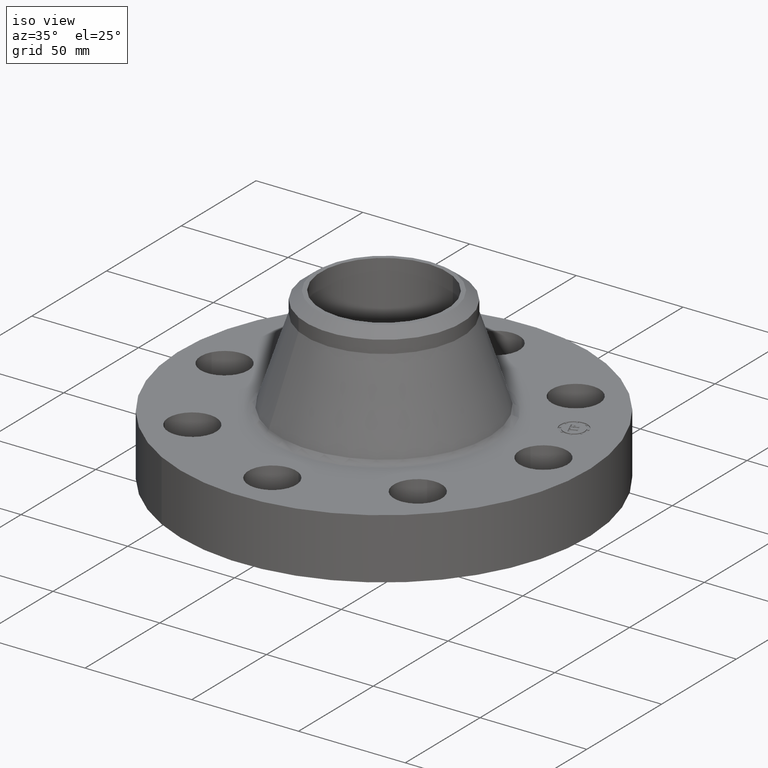
[diagram: clean part render]
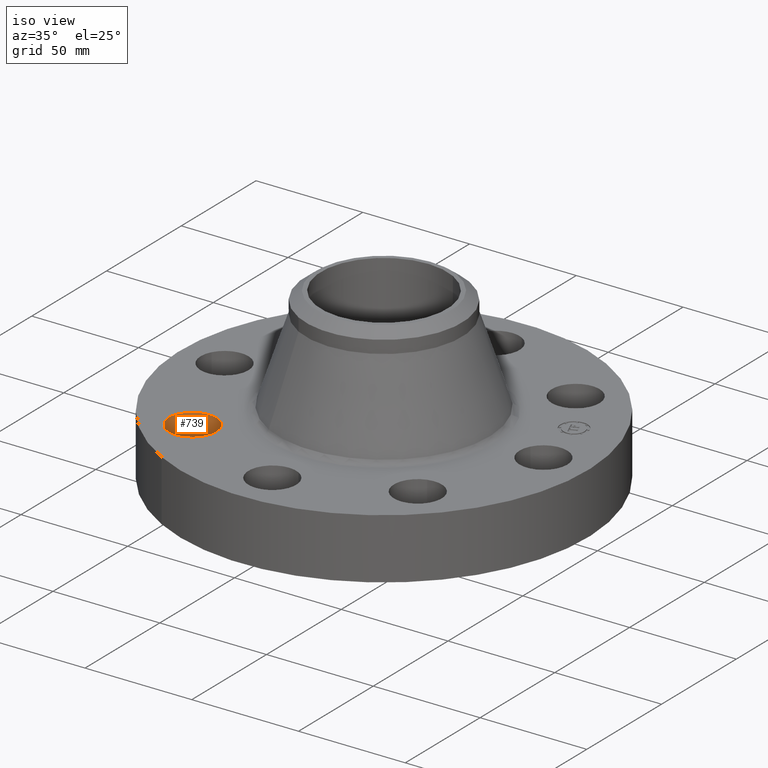
[diagram: same view with one face highlighted and labeled with its STEP entity id]
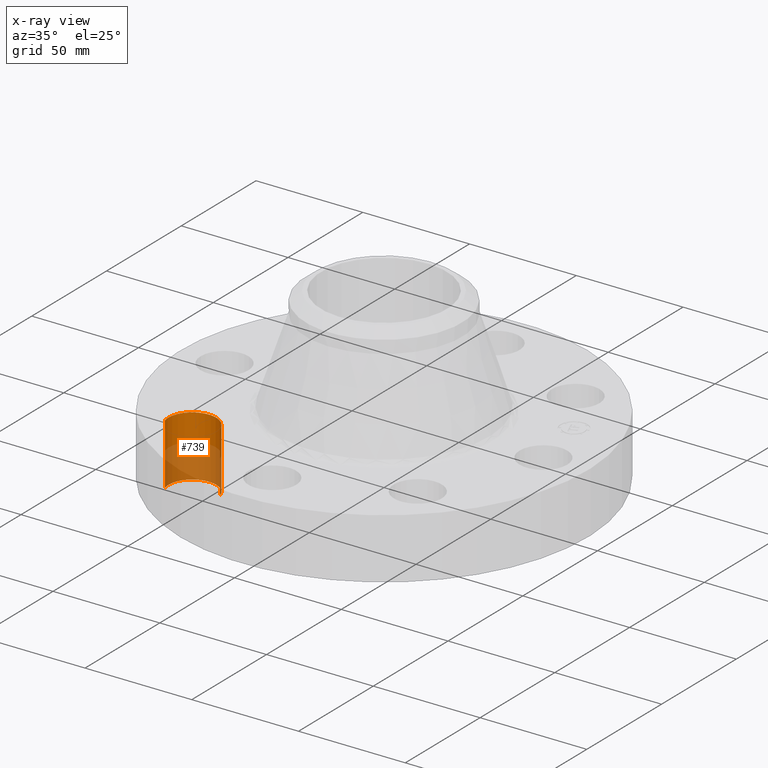
[diagram: x-ray of the same camera — body ghosted, the highlighted face saturated]
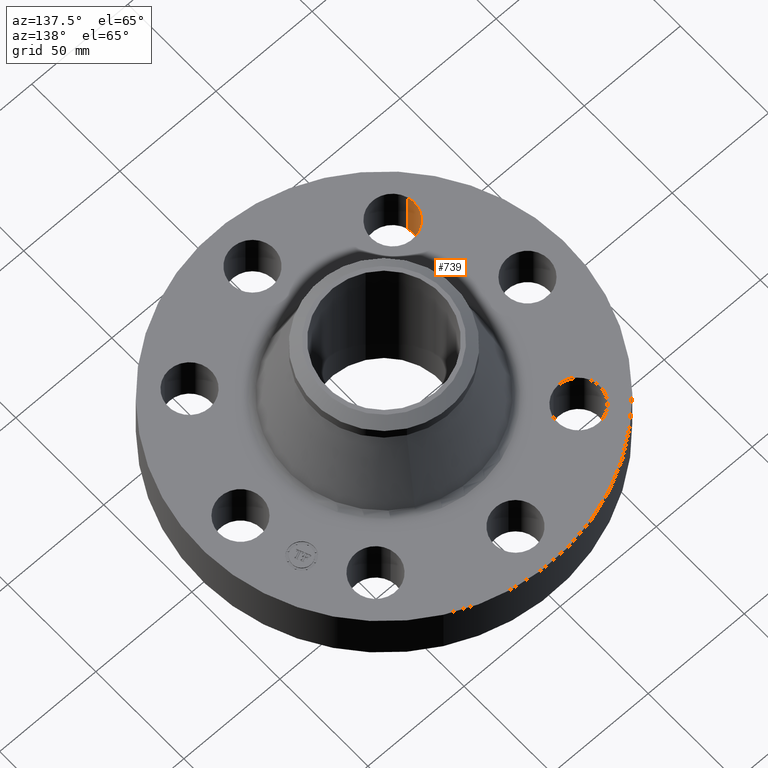
[diagram: same view with one face highlighted and labeled with its STEP entity id]
A machine part, iso view. The second image highlights one B-rep face of the part: STEP entity #739.
The next image is the same camera in x-ray: the body ghosted, the highlighted face saturated — about 55% of this face is hidden behind the body in this view.
A second angle (auxiliary view) of the same face is appended — the face is thin or edge-on in the first view.
In plain terms, the highlighted cylindrical surface (edge-blend (fillet) strip) has radius 11.176 mm, axis along (-0, 0, -1).
Its self-contained STEP definition (entity closure, byte-faithful):
#488=AXIS2_PLACEMENT_3D('Circle Axis2P3D',#486,#487,$) ;
#700=AXIS2_PLACEMENT_3D('Cylinder Axis2P3D',#697,#698,#699) ;
#730=AXIS2_PLACEMENT_3D('Circle Axis2P3D',#728,#729,$) ;
#481=CARTESIAN_POINT('Vertex',(-1.6566920995,-1.95501654299,0.)) ;
#483=CARTESIAN_POINT('Vertex',(-2.50109577389,-2.2027713304,0.)) ;
#486=CARTESIAN_POINT('Axis2P3D Location',(-2.0788939367,-2.0788939367,0.)) ;
#697=CARTESIAN_POINT('Axis2P3D Location',(-2.0788939367,-2.0788939367,1.11606299213)) ;
#702=CARTESIAN_POINT('Line Origine',(-1.6566920995,-1.95501654299,0.560000000002)) ;
#706=CARTESIAN_POINT('Vertex',(-1.6566920995,-1.95501654299,1.12)) ;
#709=CARTESIAN_POINT('Line Origine',(-2.50109577389,-2.2027713304,0.560000000002)) ;
#713=CARTESIAN_POINT('Vertex',(-2.50109577389,-2.2027713304,1.12)) ;
#728=CARTESIAN_POINT('Axis2P3D Location',(-2.0788939367,-2.0788939367,1.12)) ;
#487=DIRECTION('Axis2P3D Direction',(0.,0.,-0.0393700787402)) ;
#698=DIRECTION('Axis2P3D Direction',(-0.,0.,-0.0393700787402)) ;
#699=DIRECTION('Axis2P3D XDirection',(-0.0377775444876,-0.0110842335096,0.)) ;
#703=DIRECTION('Vector Direction',(0.,0.,-0.0393700787402)) ;
#710=DIRECTION('Vector Direction',(0.,0.,-0.0393700787402)) ;
#729=DIRECTION('Axis2P3D Direction',(-0.,0.,-0.0393700787402)) ;
#704=VECTOR('Line Direction',#703,0.0393700787402) ;
#711=VECTOR('Line Direction',#710,0.0393700787402) ;
#734=ORIENTED_EDGE('',*,*,#715,.F.) ;
#735=ORIENTED_EDGE('',*,*,#490,.T.) ;
#736=ORIENTED_EDGE('',*,*,#708,.T.) ;
#737=ORIENTED_EDGE('',*,*,#732,.F.) ;
#739=ADVANCED_FACE('PartBody',(#738),#701,.F.) ;
#489=CIRCLE('generated circle',#488,0.440000000002) ;
#731=CIRCLE('generated circle',#730,0.440000000002) ;
#701=CYLINDRICAL_SURFACE('generated cylinder',#700,0.440000000002) ;
#490=EDGE_CURVE('',#484,#482,#489,.T.) ;
#708=EDGE_CURVE('',#482,#707,#705,.F.) ;
#715=EDGE_CURVE('',#484,#714,#712,.F.) ;
#732=EDGE_CURVE('',#714,#707,#731,.T.) ;
#733=EDGE_LOOP('',(#734,#735,#736,#737)) ;
#738=FACE_OUTER_BOUND('',#733,.T.) ;
#705=LINE('Line',#702,#704) ;
#712=LINE('Line',#709,#711) ;
#482=VERTEX_POINT('',#481) ;
#484=VERTEX_POINT('',#483) ;
#707=VERTEX_POINT('',#706) ;
#714=VERTEX_POINT('',#713) ;